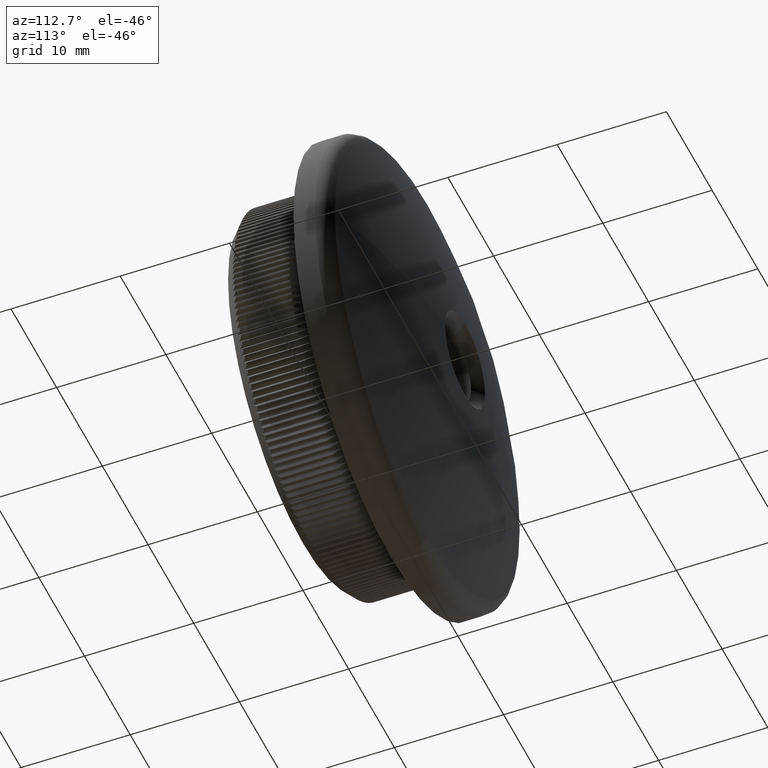
[diagram: clean part render]
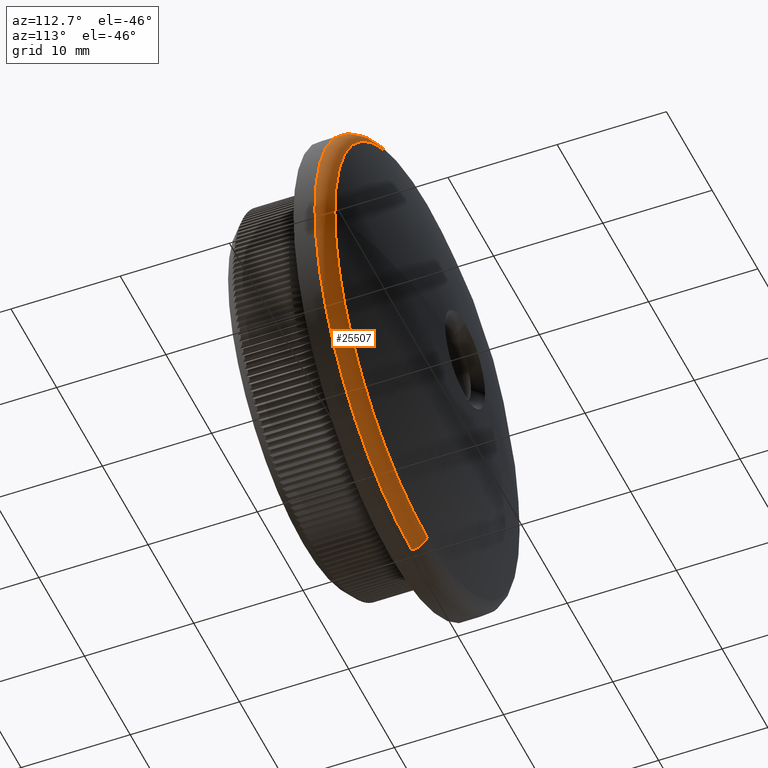
[diagram: same view with one face highlighted and labeled with its STEP entity id]
A machine part, auxiliary view. The second image highlights one B-rep face of the part: STEP entity #25507.
In plain terms, the highlighted toroidal blend (fillet) surface has major radius 19.7 mm and minor (blend) radius 1.5 mm.
Its self-contained STEP definition (entity closure, byte-faithful):
#137 = VERTEX_POINT ( 'NONE', #12093 ) ;
#637 = CARTESIAN_POINT ( 'NONE',  ( 0.0000000000000000000, 11.37281375303810000, 0.0000000000000000000 ) ) ;
#1344 = EDGE_CURVE ( 'NONE', #26453, #24558, #16442, .T. ) ;
#1618 = ORIENTED_EDGE ( 'NONE', *, *, #12146, .F. ) ;
#2214 = AXIS2_PLACEMENT_3D ( 'NONE', #6851, #23573, #18898 ) ;
#2834 = CARTESIAN_POINT ( 'NONE',  ( 2.412554194320286400E-015, 9.966330070852492900, 19.70000000000000300 ) ) ;
#2909 = DIRECTION ( 'NONE',  ( 0.0000000000000000000, 0.0000000000000000000, -1.000000000000000000 ) ) ;
#3745 = AXIS2_PLACEMENT_3D ( 'NONE', #12732, #5768, #19905 ) ;
#4890 = CIRCLE ( 'NONE', #2214, 21.20000000000000300 ) ;
#5768 = DIRECTION ( 'NONE',  ( -0.0000000000000000000, -1.000000000000000000, -0.0000000000000000000 ) ) ;
#6851 = CARTESIAN_POINT ( 'NONE',  ( 0.0000000000000000000, 9.966330070852492900, 0.0000000000000000000 ) ) ;
#7435 = FACE_OUTER_BOUND ( 'NONE', #23265, .T. ) ;
#8172 = TOROIDAL_SURFACE ( 'NONE', #3745, 19.70000000000000300, 1.500000000000000000 ) ;
#8233 = ORIENTED_EDGE ( 'NONE', *, *, #21765, .F. ) ;
#8319 = EDGE_CURVE ( 'NONE', #137, #30349, #30624, .T. ) ;
#8531 = ORIENTED_EDGE ( 'NONE', *, *, #27366, .F. ) ;
#8741 = CARTESIAN_POINT ( 'NONE',  ( 0.0000000000000000000, 9.966330070852492900, -21.20000000000000300 ) ) ;
#9168 = AXIS2_PLACEMENT_3D ( 'NONE', #10868, #10673, #17693 ) ;
#10226 = CARTESIAN_POINT ( 'NONE',  ( 2.596251214192389200E-015, 9.966330070852492900, 21.20000000000000300 ) ) ;
#10673 = DIRECTION ( 'NONE',  ( -1.000000000000000000, 0.0000000000000000000, 0.0000000000000000000 ) ) ;
#10868 = CARTESIAN_POINT ( 'NONE',  ( 0.0000000000000000000, 9.966330070852492900, -19.70000000000000300 ) ) ;
#12093 = CARTESIAN_POINT ( 'NONE',  ( 0.0000000000000000000, 11.37281375303810000, -20.22134791813691000 ) ) ;
#12146 = EDGE_CURVE ( 'NONE', #30349, #24558, #4890, .T. ) ;
#12732 = CARTESIAN_POINT ( 'NONE',  ( 0.0000000000000000000, 9.966330070852492900, 0.0000000000000000000 ) ) ;
#14390 = DIRECTION ( 'NONE',  ( -1.224646799147352000E-016, 0.0000000000000000000, -1.000000000000000000 ) ) ;
#16442 = CIRCLE ( 'NONE', #18542, 1.500000000000001300 ) ;
#16899 = DIRECTION ( 'NONE',  ( 0.0000000000000000000, 0.0000000000000000000, -1.000000000000000000 ) ) ;
#17693 = DIRECTION ( 'NONE',  ( 0.0000000000000000000, 0.0000000000000000000, 1.000000000000000000 ) ) ;
#18542 = AXIS2_PLACEMENT_3D ( 'NONE', #2834, #26520, #14390 ) ;
#18898 = DIRECTION ( 'NONE',  ( 0.0000000000000000000, 0.0000000000000000000, -1.000000000000000000 ) ) ;
#19173 = VERTEX_POINT ( 'NONE', #19698 ) ;
#19698 = CARTESIAN_POINT ( 'NONE',  ( 20.22134791813689200, 11.37281375303809700, 0.0000000000000000000 ) ) ;
#19763 = ORIENTED_EDGE ( 'NONE', *, *, #8319, .F. ) ;
#19905 = DIRECTION ( 'NONE',  ( 0.0000000000000000000, 0.0000000000000000000, -1.000000000000000000 ) ) ;
#20443 = ORIENTED_EDGE ( 'NONE', *, *, #1344, .T. ) ;
#21765 = EDGE_CURVE ( 'NONE', #19173, #137, #24622, .T. ) ;
#23265 = EDGE_LOOP ( 'NONE', ( #8531, #20443, #1618, #19763, #8233 ) ) ;
#23573 = DIRECTION ( 'NONE',  ( -0.0000000000000000000, -1.000000000000000000, -0.0000000000000000000 ) ) ;
#23968 = CARTESIAN_POINT ( 'NONE',  ( 0.0000000000000000000, 11.37281375303810000, 0.0000000000000000000 ) ) ;
#24094 = CIRCLE ( 'NONE', #25478, 20.22134791813691000 ) ;
#24558 = VERTEX_POINT ( 'NONE', #10226 ) ;
#24622 = CIRCLE ( 'NONE', #28233, 20.22134791813691000 ) ;
#25478 = AXIS2_PLACEMENT_3D ( 'NONE', #637, #26792, #2909 ) ;
#25507 = ADVANCED_FACE ( 'NONE', ( #7435 ), #8172, .T. ) ;
#26453 = VERTEX_POINT ( 'NONE', #29920 ) ;
#26520 = DIRECTION ( 'NONE',  ( 1.000000000000000000, 0.0000000000000000000, -1.224646799147353500E-016 ) ) ;
#26792 = DIRECTION ( 'NONE',  ( 0.0000000000000000000, 1.000000000000000000, 0.0000000000000000000 ) ) ;
#27366 = EDGE_CURVE ( 'NONE', #26453, #19173, #24094, .T. ) ;
#28233 = AXIS2_PLACEMENT_3D ( 'NONE', #23968, #28723, #16899 ) ;
#28723 = DIRECTION ( 'NONE',  ( 0.0000000000000000000, 1.000000000000000000, 0.0000000000000000000 ) ) ;
#29920 = CARTESIAN_POINT ( 'NONE',  ( 2.536326057215763400E-015, 11.37281375303810000, 20.22134791813691000 ) ) ;
#30349 = VERTEX_POINT ( 'NONE', #8741 ) ;
#30624 = CIRCLE ( 'NONE', #9168, 1.500000000000001300 ) ;